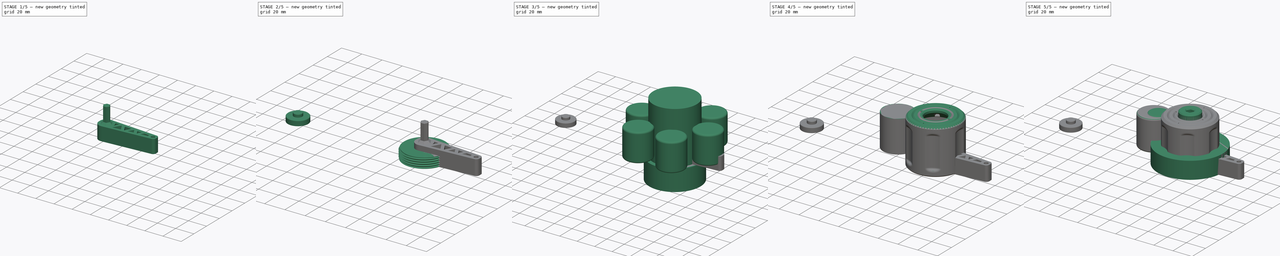
[diagram: build sequence overview — one tinted view per stage of 5, left to right]
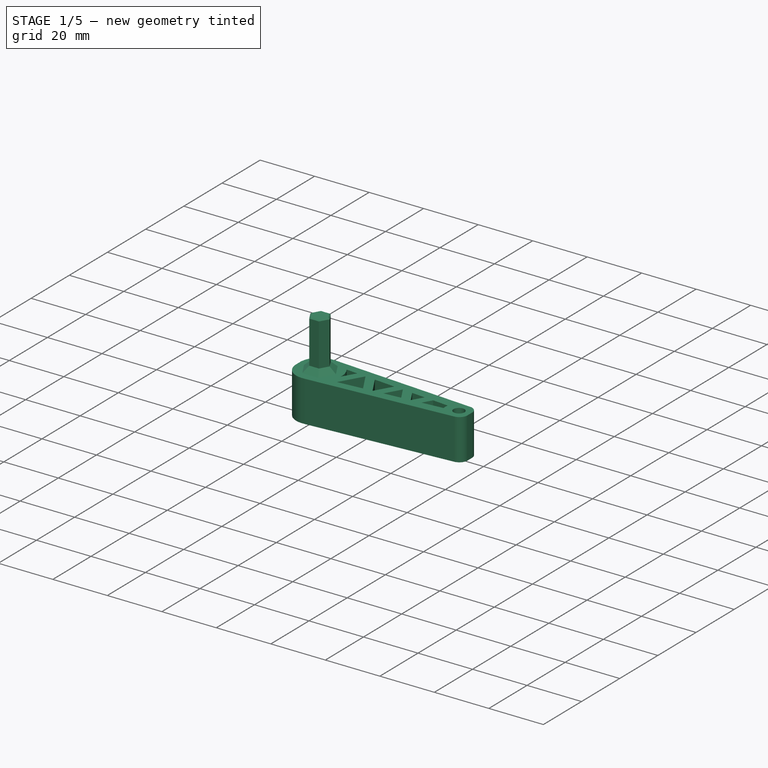
[diagram: stage 1 of 5 — iso view after this stage's code; geometry added in this stage tinted green]
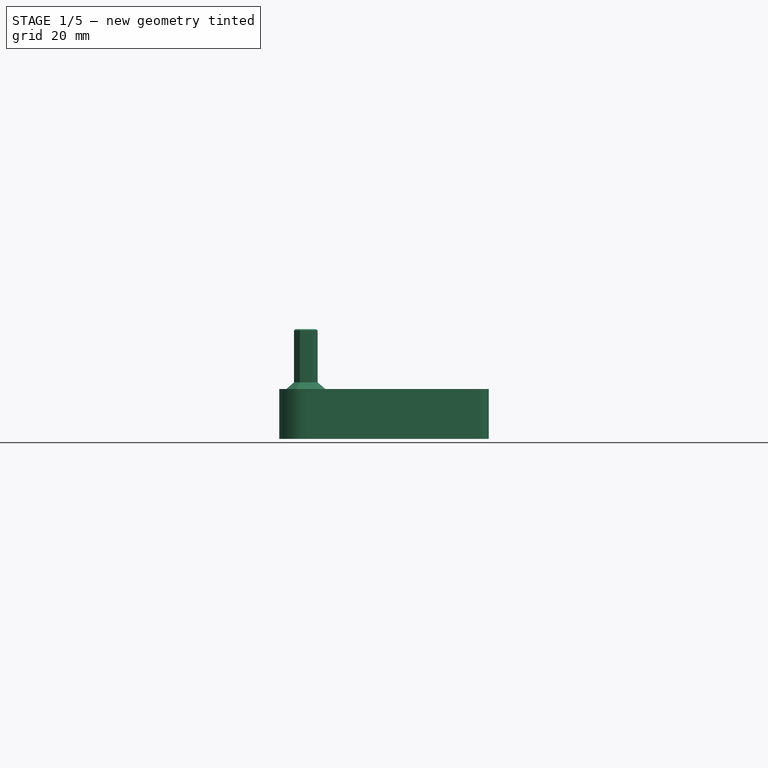
[diagram: stage 1 of 5 — front view after this stage's code; geometry added in this stage tinted green]
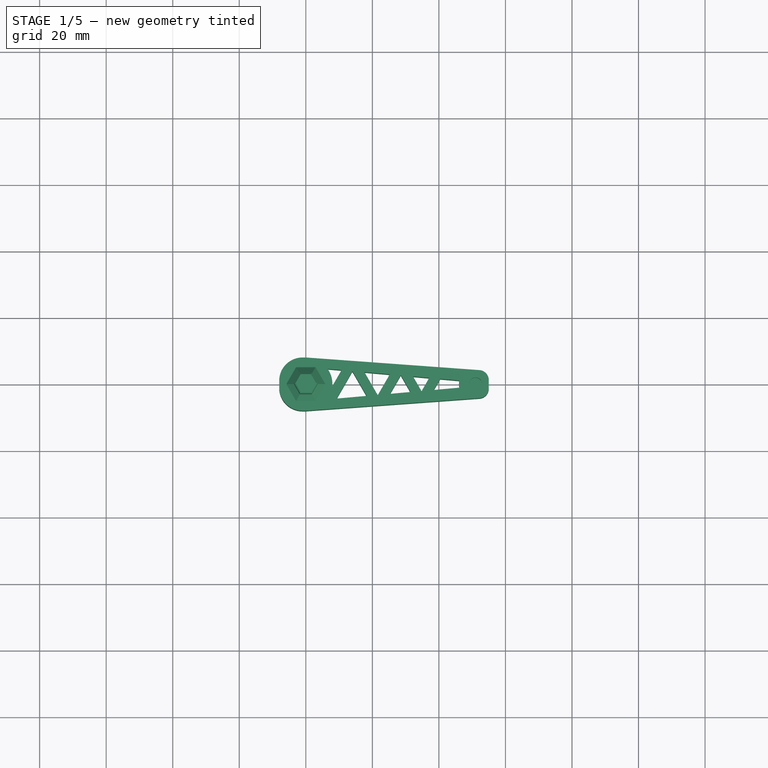
[diagram: stage 1 of 5 — top view after this stage's code; geometry added in this stage tinted green]
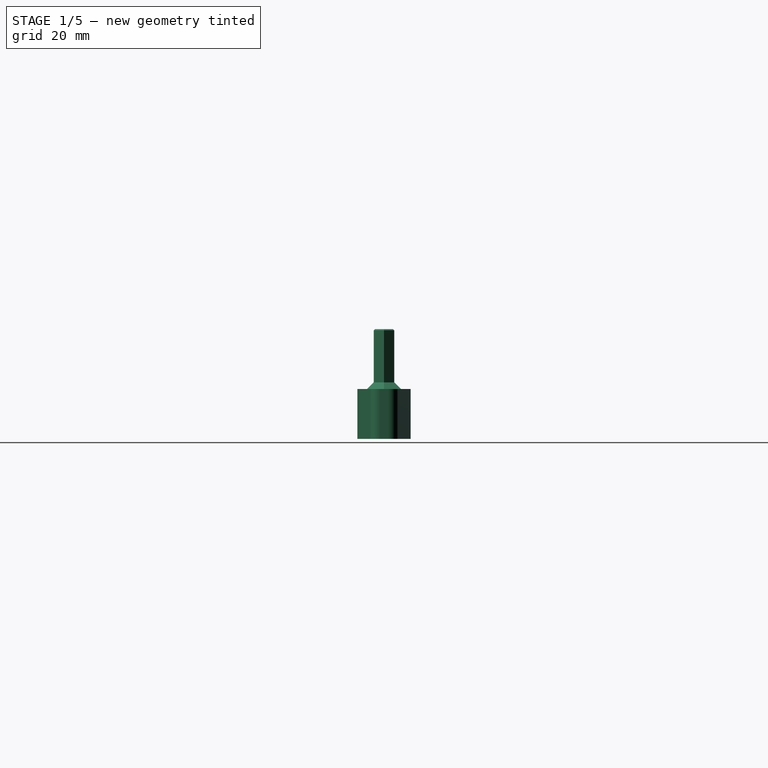
[diagram: stage 1 of 5 — right view after this stage's code; geometry added in this stage tinted green]
FCSTD DOCUMENT  (FreeCAD 0.18R16146 (Git))
Label: torque-wrench
License: All rights reserved
LicenseURL: http://en.wikipedia.org/wiki/All_rights_reserved
objects: Part::Feature×48, Part::Cylinder×39, Part::Cut×36, Part::Chamfer×23, Part::Box×13, Part::MultiFuse×11, Part::Fillet×5, Sketcher::SketchObject×4, PartDesign::Body×4, Part::Helix×3, PartDesign::AdditivePipe×2, Part::MultiCommon×2, PartDesign::Pad×1
note: 194 computed .brp shape members not serialized (recipe doc carries the construction recipe); baked Part::Feature solids carry a one-line shape summary decoded from their .brp

FEATURE [Part::Cylinder] Cylinder022001023
  Angle = 360
  AttacherType = Attacher::AttachEngine3D
  Height = 10
  Placement = pos=(51.02,0,0) rot=(0,0,1;0rad)
  Radius = 2
FEATURE [Part::Feature] Body002003002003002002001  label="Body002003002003002003"
  shape: bbox 7.1 x 6.149 x 50 mm, 8 faces (baked)
FEATURE [Part::Box] Box002002001002001005003  label="Cube016"
  AttacherType = Attacher::AttachEngine3D
  Height = 10
  Length = 63
  Placement = pos=(-8,-8,0) rot=(0,0,1;0rad)
  Width = 16
FEATURE [Part::Fillet] Fillet001008
  Base = -> Box002002001002001005003
  Edges = 2 edges r=7: [Edge1,Edge3]
FEATURE [Part::Chamfer] Chamfer025003
  Base = -> Fillet001008
  Edges = 1 edges: [Edge18 r1=55 r2=4]
FEATURE [Part::Chamfer] Chamfer025004
  Base = -> Chamfer025003
  Edges = 1 edges: [Edge15 r1=4 r2=55]
FEATURE [Part::Fillet] Fillet001009
  Base = -> Chamfer025004
  Edges = 2 edges r=3: [Edge9,Edge10]
FEATURE [Part::Cylinder] Cylinder022001024
  Angle = 360
  AttacherType = Attacher::AttachEngine3D
  Height = 19
  Radius = 8
FEATURE [Part::Box] Box002002001002001005004  label="Cube017"
  AttacherType = Attacher::AttachEngine3D
  Height = 12
  Length = 47
  Placement = pos=(0,-5,0) rot=(0,0,1;0rad)
  Width = 10
FEATURE [Part::Chamfer] Chamfer025005
  Base = -> Box002002001002001005004
  Edges = 1 edges: [Edge7 r1=4 r2=45]
FEATURE [Part::Chamfer] Chamfer025006
  Base = -> Chamfer025005
  Edges = 1 edges: [Edge3 r1=4 r2=45]
FEATURE [Part::Cut] Cut021013056003
  Base = -> Chamfer025006
  Tool = -> Cylinder022001024
FEATURE [Part::Cylinder] Cylinder022001025
  Angle = 360
  AttacherType = Attacher::AttachEngine3D
  Height = 13
  Placement = pos=(51.02,0,0) rot=(0,0,1;0rad)
  Radius = 5
FEATURE [Part::Cut] Cut021013056004
  Base = -> Cut021013056003
  Tool = -> Cylinder022001025
FEATURE [Part::Cut] Cut021013056005
  Base = -> Fillet001009
  Tool = -> Cut021013056004
FEATURE [Part::Box] Box002002001002001005005  label="Cube018"
  AttacherType = Attacher::AttachEngine3D
  Height = 15
  Length = 3
  Placement = pos=(5.63397,-4.63397,0) rot=(0,0,1;5.75959rad)
  Width = 13
FEATURE [Part::Feature] Cut021013056006001  label="Cut021013056007"
  Placement = pos=(0,0,5) rot=(0,0,1;0rad)
  shape: bbox 63 x 16 x 10 mm, 17 faces (baked)
FEATURE [Part::Box] Box002002001002001005006  label="Cube019"
  AttacherType = Attacher::AttachEngine3D
  Height = 15
  Length = 3
  Placement = pos=(19.0263,-4.83013,0) rot=(0,0,1;0.523599rad)
  Width = 11
FEATURE [Part::Box] Box002002001002001005007  label="Cube020"
  AttacherType = Attacher::AttachEngine3D
  Height = 15
  Length = 3
  Placement = pos=(21.3253,-3.84808,0) rot=(0,0,1;5.75959rad)
  Width = 11
FEATURE [Part::Box] Box002002001002001005008  label="Cube021"
  AttacherType = Attacher::AttachEngine3D
  Height = 15
  Length = 3
  Placement = pos=(32.4186,-4.02628,0) rot=(0,0,1;0.523599rad)
  Width = 8
FEATURE [Part::Box] Box002002001002001005009  label="Cube022"
  AttacherType = Attacher::AttachEngine3D
  Height = 15
  Length = 3
  Placement = pos=(33.9284,-3.61891,0) rot=(0,0,-1;0.523599rad)
  Width = 9
FEATURE [Part::Cylinder] Cylinder022001026
  Angle = 360
  AttacherType = Attacher::AttachEngine3D
  Height = 22
  Placement = pos=(0,0,33) rot=(0,0,1;0rad)
  Radius = 7
FEATURE [Part::Cut] Cut021013056006002
  Base = -> Body002003002003002002001
  Tool = -> Cylinder022001026
FEATURE [Part::Chamfer] Chamfer025007
  Base = -> Cut021013056006002
  Edges = 6 edges r=0.4: [Edge3,Edge11,Edge12,Edge13,Edge14,Edge15]
FEATURE [Part::Cylinder] Cylinder022001027
  Angle = 360
  AttacherType = Attacher::AttachEngine3D
  Height = 41
  Radius = 1.6
FEATURE [Part::Feature] Chamfer025008001  label="calibration-arm-std"
  shape: bbox 63 x 16 x 33 mm, 54 faces (baked)
FEATURE [Part::Cylinder] Cylinder022001028
  Angle = 360
  AttacherType = Attacher::AttachEngine3D
  Height = 3
  Radius = 3
FEATURE [Part::MultiFuse] Fusion006013
  Shapes = -> [Cylinder022001028,Cylinder022001027]
FEATURE [Part::Feature] Chamfer025008002  label="calibration-arm001"
  shape: bbox 63 x 16 x 33 mm, 54 faces (baked)
FEATURE [Part::Cut] Cut021013056006003  label="calibration-arm-hd"
  Base = -> Chamfer025008002
  Tool = -> Fusion006013
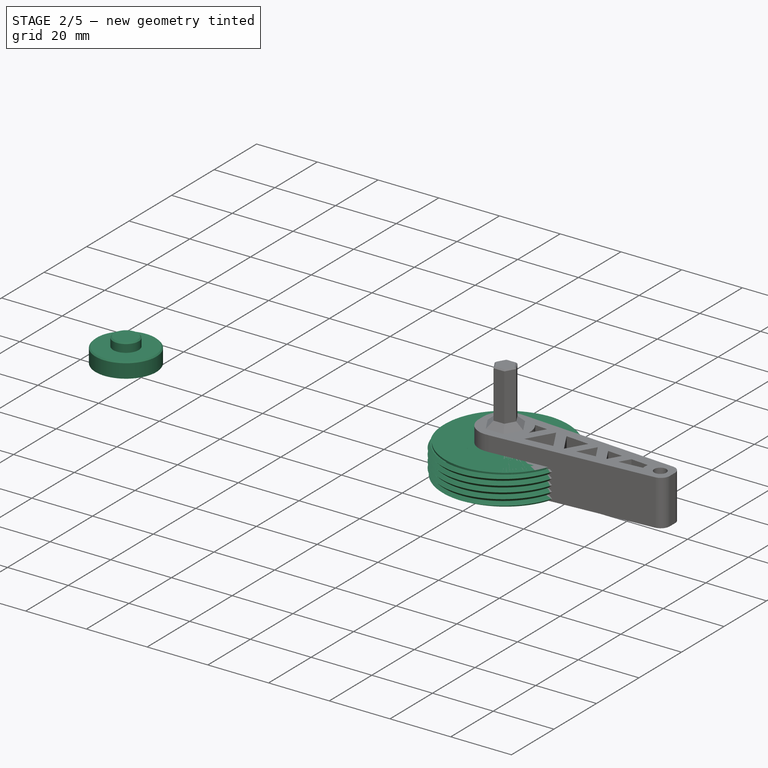
[diagram: stage 2 of 5 — iso view after this stage's code; geometry added in this stage tinted green]
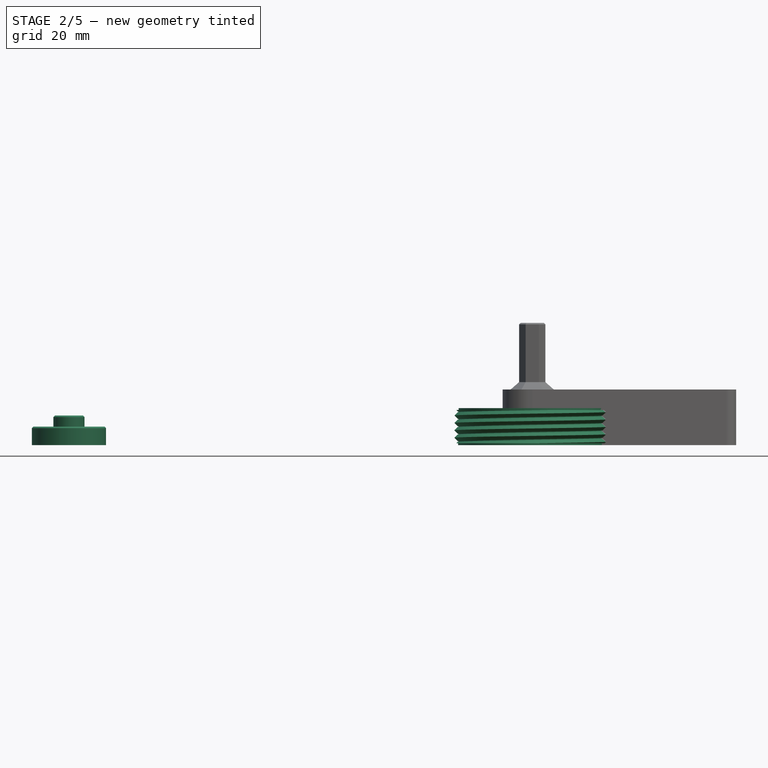
[diagram: stage 2 of 5 — front view after this stage's code; geometry added in this stage tinted green]
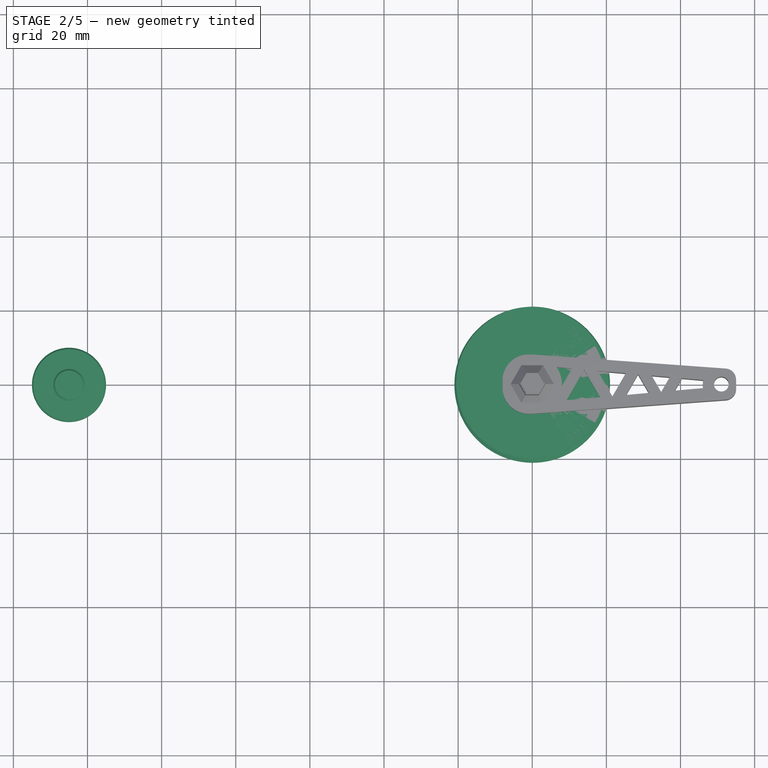
[diagram: stage 2 of 5 — top view after this stage's code; geometry added in this stage tinted green]
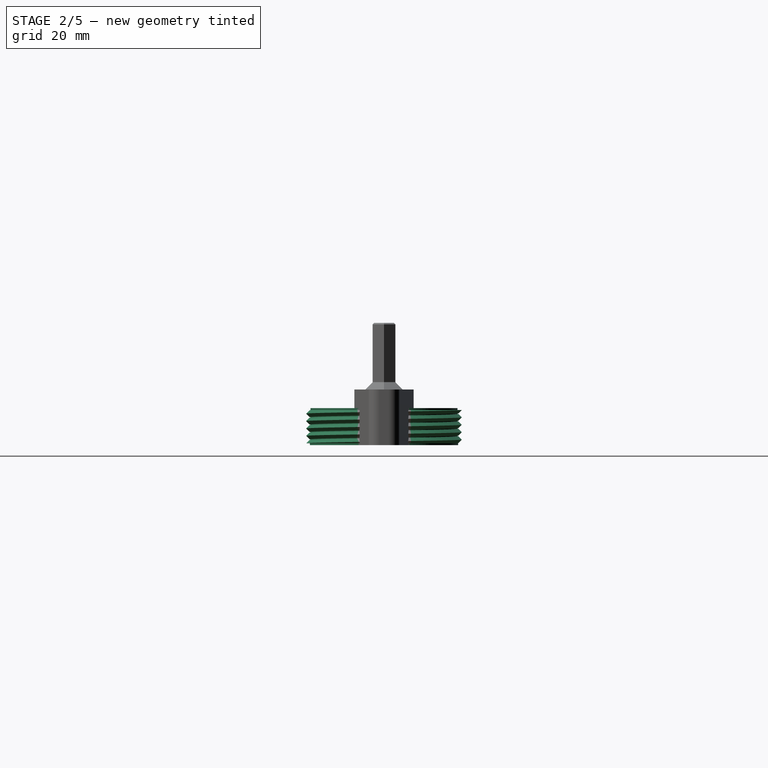
[diagram: stage 2 of 5 — right view after this stage's code; geometry added in this stage tinted green]
FEATURE [Part::Cylinder] Cylinder018  label="spring-slot"
  Angle = 360
  AttacherType = Attacher::AttachEngine3D
  Height = 20
  Placement = pos=(0,0,7) rot=(0,0,1;0rad)
  Radius = 4.3
FEATURE [Part::Cylinder] Cylinder020  label="Cylinder018"
  Angle = 360
  AttacherType = Attacher::AttachEngine3D
  Height = 9
  Placement = pos=(0,0,0.5) rot=(0,0,1;0rad)
  Radius = 28
FEATURE [Part::Cylinder] Cylinder021  label="Cylinder019"
  Angle = 360
  AttacherType = Attacher::AttachEngine3D
  Height = 10
  Radius = 19.85
FEATURE [PartDesign::Body] Body002003002003
  Group = -> [Sketch003,AdditivePipe001]
  Origin = -> Origin003
  Tip = -> AdditivePipe001
FEATURE [Part::Feature] Body002003002003001  label="inner-thread"
  shape: bbox 42.72 x 43.44 x 21.8 mm, 52 faces (baked)
FEATURE [Part::MultiCommon] Common
  Shapes = -> [Body002003002003001,Cylinder020]
FEATURE [Part::MultiFuse] Fusion
  Shapes = -> [Cylinder021,Common]
FEATURE [Part::Cut] Cut
  Base = -> Fusion
  Tool = -> Cylinder018
FEATURE [Part::Cylinder] Cylinder022001011
  Angle = 360
  AttacherType = Attacher::AttachEngine3D
  Height = 1
  Radius = 17
FEATURE [Part::Cylinder] Cylinder022001012
  Angle = 360
  AttacherType = Attacher::AttachEngine3D
  Height = 1
  Radius = 20
FEATURE [Part::Cut] Cut021013044
  Base = -> Cylinder022001012
  Tool = -> Cylinder022001011
FEATURE [Part::Cylinder] Cylinder022001013
  Angle = 360
  AttacherType = Attacher::AttachEngine3D
  Height = 3
  Placement = pos=(0,0,7) rot=(0,0,1;0rad)
  Radius = 17
FEATURE [Part::Box] Box  label="Cube"
  AttacherType = Attacher::AttachEngine3D
  Height = 3
  Length = 12
  Placement = pos=(-6,-18,7) rot=(0,0,1;0rad)
  Width = 36
FEATURE [Part::Cut] Cut021013046
  Base = -> Cylinder022001013
  Tool = -> Box
FEATURE [Part::Box] Box002002001002001003  label="Cube011"
  AttacherType = Attacher::AttachEngine3D
  Height = 10
  Length = 36
  Placement = pos=(-18,6,0) rot=(0,0,1;0rad)
  Width = 2
FEATURE [Part::Box] Box002002001002001004  label="Cube012"
  AttacherType = Attacher::AttachEngine3D
  Height = 10
  Length = 36
  Placement = pos=(-18,-8,0) rot=(0,0,1;0rad)
  Width = 2
FEATURE [Part::Cut] Cut021013047
  Base = -> Cut021013046
  Tool = -> Box002002001002001004
FEATURE [Part::Cut] Cut021013048
  Base = -> Cut021013047
  Tool = -> Box002002001002001003
FEATURE [Part::Feature] Chamfer025001  label="cap-r002"
  Placement = pos=(87,0,10) rot=(0,1,0;3.14159rad)
  shape: bbox 42.72 x 43.44 x 11.22 mm, 93 faces (baked)
FEATURE [Part::Feature] Cut021013056001  label="housing-r002"
  Placement = pos=(-53,0,46) rot=(0,1,0;3.14159rad)
  shape: bbox 51.67 x 50 x 46.11 mm, 166 faces (baked)
FEATURE [Part::Feature] Cut021013036001  label="bottom-rotor-r002"
  Placement = pos=(0,0,-24) rot=(0,0,1;0rad)
  shape: bbox 40 x 34.86 x 8 mm, 50 faces (baked)
FEATURE [Part::Feature] Chamfer014001  label="top-rotor-r002"
  Placement = pos=(43,0,50) rot=(0,1,0;3.14159rad)
  shape: bbox 34.5 x 34.5 x 22.59 mm, 57 faces (baked)
FEATURE [Part::Cylinder] Cylinder022001019
  Angle = 360
  AttacherType = Attacher::AttachEngine3D
  Height = 5
  Placement = pos=(-125,0,0) rot=(0,0,1;0rad)
  Radius = 10
FEATURE [Part::Cylinder] Cylinder022001020
  Angle = 360
  AttacherType = Attacher::AttachEngine3D
  Height = 3
  Placement = pos=(-125,0,5) rot=(0,0,1;0rad)
  Radius = 4.2
FEATURE [Part::Cylinder] Cylinder022001021
  Angle = 360
  AttacherType = Attacher::AttachEngine3D
  Height = 3
  Placement = pos=(-125,0,0) rot=(0,0,1;0rad)
  Radius = 4.3
FEATURE [Part::Cut] Cut021013056002
  Base = -> Cylinder022001019
  Tool = -> Cylinder022001021
FEATURE [Part::MultiFuse] Fusion006010
  Shapes = -> [Cut021013056002,Cylinder022001020]
FEATURE [Part::Chamfer] Chamfer025002  label="spacer-r1"
  Base = -> Fusion006010
  Edges = 2 edges r=0.4: [Edge1,Edge6]
FEATURE [Part::Cylinder] Cylinder022001022
  Angle = 360
  AttacherType = Attacher::AttachEngine3D
  Height = 10
  Radius = 2
FEATURE [Part::Cut] Cut021013056006
  Base = -> Cut021013056005
  Tool = -> Cylinder022001023
FEATURE [Part::MultiFuse] Fusion006011
  Shapes = -> [Box002002001002001005009,Box002002001002001005008,Box002002001002001005007,Box002002001002001005006,Cut021013056006001,Box002002001002001005005,Cut021013056006]
FEATURE [Part::MultiFuse] Fusion006012
  Shapes = -> [Chamfer025007,Fusion006011]
FEATURE [Part::Chamfer] Chamfer025008  label="calibration-arm"
  Base = -> Fusion006012
  Edges = 6 edges r=2: [Edge290,Edge291,Edge292,Edge293,Edge294,Edge295]
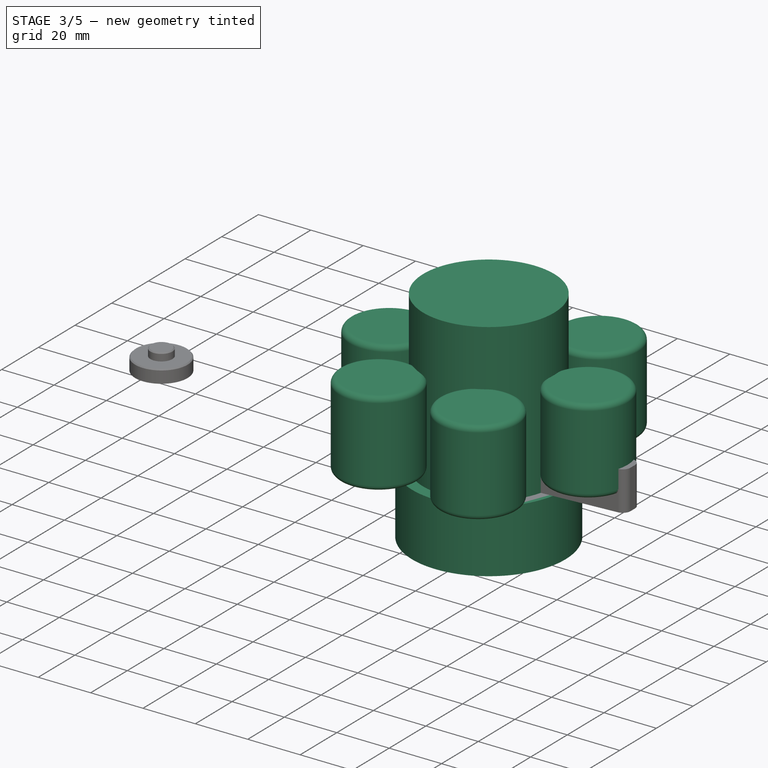
[diagram: stage 3 of 5 — iso view after this stage's code; geometry added in this stage tinted green]
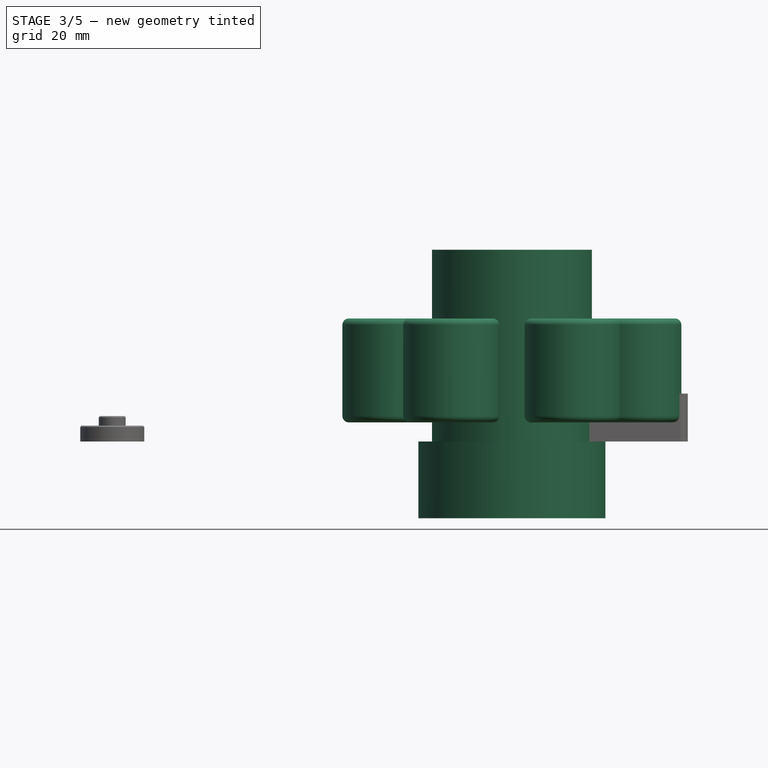
[diagram: stage 3 of 5 — front view after this stage's code; geometry added in this stage tinted green]
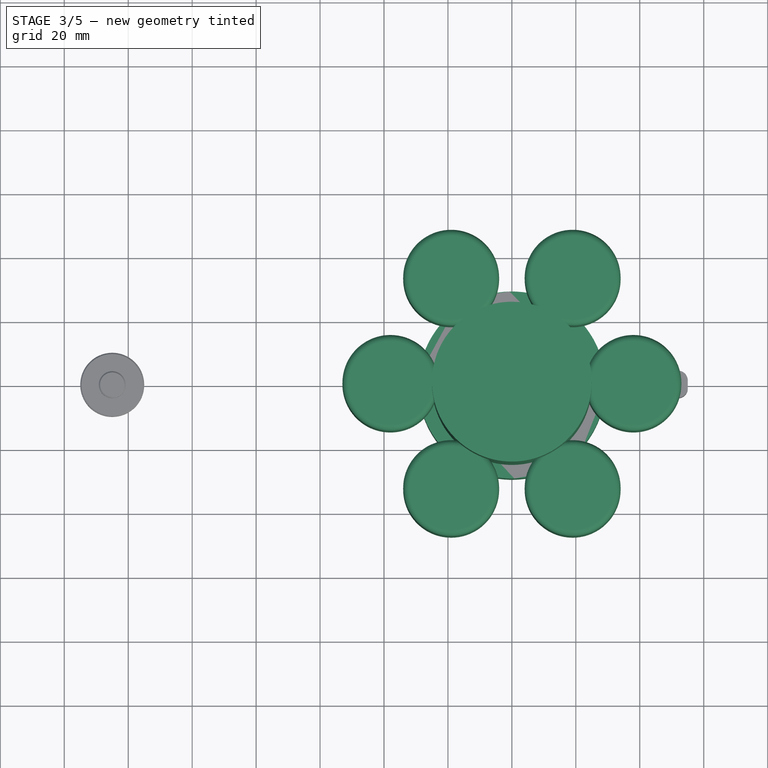
[diagram: stage 3 of 5 — top view after this stage's code; geometry added in this stage tinted green]
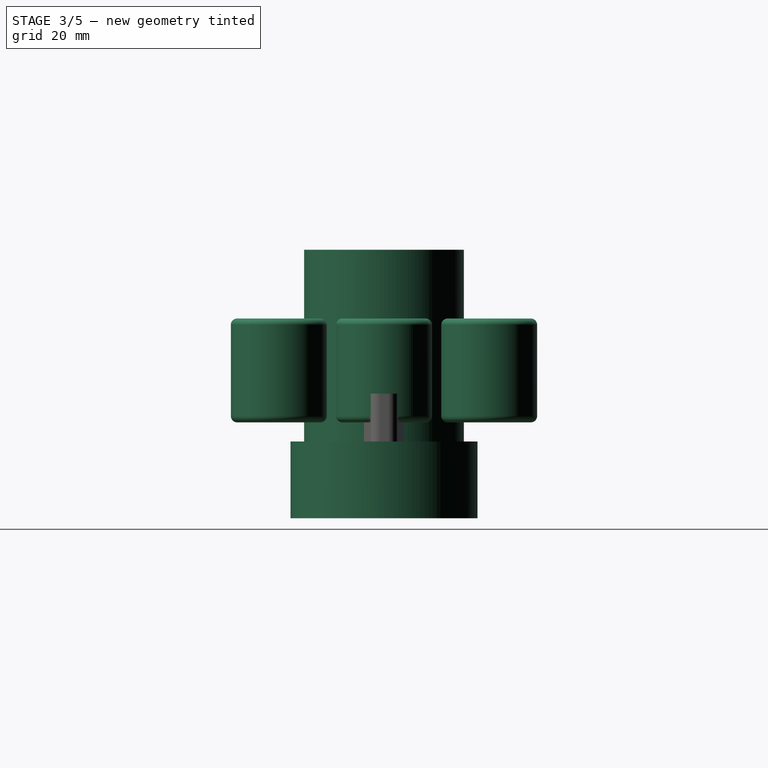
[diagram: stage 3 of 5 — right view after this stage's code; geometry added in this stage tinted green]
FEATURE [Part::Cylinder] Cylinder007
  Angle = 360
  AttacherType = Attacher::AttachEngine3D
  Height = 60
  Radius = 25
FEATURE [Part::Cylinder] Cylinder009
  Angle = 360
  AttacherType = Attacher::AttachEngine3D
  Height = 71
  Radius = 17.5
FEATURE [Part::Chamfer] Chamfer003
  Base = -> Cylinder009
  Edges = 1 edges r=7: [Edge1]
  Placement = pos=(0,0,-14) rot=(0,0,1;0rad)
FEATURE [Part::Cut] Cut021013021
  Base = -> Cylinder007
  Tool = -> Chamfer003
FEATURE [Part::Cylinder] Cylinder019  label="Cylinder017"
  Angle = 360
  AttacherType = Attacher::AttachEngine3D
  Height = 5
  Radius = 15
FEATURE [Part::Box] Box002002001002001002  label="Cube010"
  AttacherType = Attacher::AttachEngine3D
  Height = 5
  Length = 34
  Placement = pos=(-17,-4,17) rot=(0,0,1;0rad)
  Width = 8
FEATURE [Part::Chamfer] Chamfer007
  Base = -> Box002002001002001002
  Edges = 2 edges r=1: [Edge9,Edge11]
  Placement = pos=(0,0,-17) rot=(0,0,1;0rad)
FEATURE [Part::Cut] Cut021013034
  Base = -> Cut
  Tool = -> Cylinder019
FEATURE [Part::Chamfer] Chamfer012
  Base = -> Cut021013034
  Edges = 1 edges r=1: [Edge67]
FEATURE [Part::Feature] Cylinder022001001  label="PTFE-slot-001"
  shape: bbox 7.283 x 4.3 x 7.283 mm, 3 faces (baked)
FEATURE [Part::Feature] Cylinder022001002  label="PTFE-slot-002"
  Placement = pos=(0,0,0) rot=(0,0,-1;1.0472rad)
  shape: bbox 6.144 x 7.074 x 7.283 mm, 3 faces (baked)
FEATURE [Part::Feature] Cylinder022001003  label="PTFE-slot-003"
  Placement = pos=(0,0,0) rot=(0,0,1;4.18879rad)
  shape: bbox 6.144 x 7.074 x 7.283 mm, 3 faces (baked)
FEATURE [Part::Feature] Cylinder022001004  label="PTFE-slot-004"
  Placement = pos=(0,0,0) rot=(0,0,1;3.14159rad)
  shape: bbox 7.283 x 4.3 x 7.283 mm, 3 faces (baked)
FEATURE [Part::Feature] Cylinder022001005  label="PTFE-slot-005"
  Placement = pos=(0,0,0) rot=(0,0,1;2.0944rad)
  shape: bbox 6.144 x 7.074 x 7.283 mm, 3 faces (baked)
FEATURE [Part::Feature] Cylinder022001006  label="PTFE-slot-006"
  Placement = pos=(0,0,0) rot=(0,0,1;1.0472rad)
  shape: bbox 6.144 x 7.074 x 7.283 mm, 3 faces (baked)
FEATURE [Part::MultiFuse] Fusion006006  label="PTFE"
  Shapes = -> [Cylinder022001006,Cylinder022001004,Cylinder022001002,Cylinder022001001,Cylinder022001005,Cylinder022001003]
FEATURE [Part::Cylinder] Cylinder022001008
  Angle = 360
  AttacherType = Attacher::AttachEngine3D
  Height = 24
  Placement = pos=(0,0,-24) rot=(0,0,1;0rad)
  Radius = 29.25
FEATURE [Part::Cylinder] Cylinder022001009
  Angle = 360
  AttacherType = Attacher::AttachEngine3D
  Height = 1
  Radius = 21.5
FEATURE [Part::MultiFuse] Fusion006008
  Shapes = -> [Chamfer012,Chamfer007]
FEATURE [Part::Cut] Cut021013045
  Base = -> Fusion006008
  Tool = -> Cut021013044
FEATURE [Part::Chamfer] Chamfer018
  Base = -> Cut021013045
  Edges = 1 edges r=0.4: [Edge15]
FEATURE [Part::Feature] Fillet001001  label="grip-cut-001"
  shape: bbox 32.47 x 32.47 x 32.5 mm, 5 faces (baked)
FEATURE [Part::Feature] Fillet001002  label="grip-cut-002"
  Placement = pos=(0,0,0) rot=(0,0,-1;1.0472rad)
  shape: bbox 31.37 x 31.37 x 32.5 mm, 5 faces (baked)
FEATURE [Part::Feature] Fillet001003  label="grip-cut-003"
  Placement = pos=(0,0,0) rot=(0,0,1;4.18879rad)
  shape: bbox 31.37 x 31.37 x 32.5 mm, 5 faces (baked)
FEATURE [Part::Feature] Fillet001004  label="grip-cut-004"
  Placement = pos=(0,0,0) rot=(0,0,1;3.14159rad)
  shape: bbox 32.47 x 32.47 x 32.5 mm, 5 faces (baked)
FEATURE [Part::Feature] Fillet001005  label="grip-cut-005"
  Placement = pos=(0,0,0) rot=(0,0,1;2.0944rad)
  shape: bbox 31.37 x 31.37 x 32.5 mm, 5 faces (baked)
FEATURE [Part::Feature] Fillet001006  label="grip-cut-006"
  Placement = pos=(0,0,0) rot=(0,0,1;1.0472rad)
  shape: bbox 31.37 x 31.37 x 32.5 mm, 5 faces (baked)
FEATURE [Part::MultiFuse] Fusion006009  label="grip-slot"
  Shapes = -> [Fillet001006,Fillet001005,Fillet001004,Fillet001003,Fillet001002,Fillet001001]
FEATURE [Part::Cylinder] Cylinder022001015
  Angle = 360
  AttacherType = Attacher::AttachEngine3D
  Height = 2
  Placement = pos=(0,0,44.5) rot=(0,0,1;0rad)
  Radius = 13
FEATURE [Part::Cylinder] Cylinder022001016
  Angle = 360
  AttacherType = Attacher::AttachEngine3D
  Height = 2
  Placement = pos=(0,0,44.5) rot=(0,0,1;0rad)
  Radius = 15
FEATURE [Part::Box] Box002002001002001005  label="Cube013"
  AttacherType = Attacher::AttachEngine3D
  Height = 10
  Length = 45
  Placement = pos=(-22.5,-1,44.5) rot=(0,0,1;0rad)
  Width = 2
FEATURE [Part::Cut] Cut021013052
  Base = -> Cylinder022001016
  Tool = -> Cylinder022001015
FEATURE [Part::Chamfer] Chamfer024
  Base = -> Cut021013052
  Edges = 2 edges r=0.99: [Edge3,Edge5]
FEATURE [Part::Cut] Cut021013053
  Base = -> Chamfer024
  Tool = -> Box002002001002001005
FEATURE [Part::Box] Box002002001002001005002  label="Cube015"
  AttacherType = Attacher::AttachEngine3D
  Height = 1
  Length = 10
  Placement = pos=(-5,-2,0) rot=(0,0,1;0rad)
  Width = 4
FEATURE [Part::Cut] Cut021013057
  Base = -> Chamfer018
  Tool = -> Cut021013048
FEATURE [Part::Cut] Cut021013058
  Base = -> Cut021013057
  Tool = -> Box002002001002001005002
FEATURE [Part::Chamfer] Chamfer025  label="cap-r1"
  Base = -> Cut021013058
  Edges = 4 edges r=0.4: [Edge27,Edge28,Edge29,Edge30]
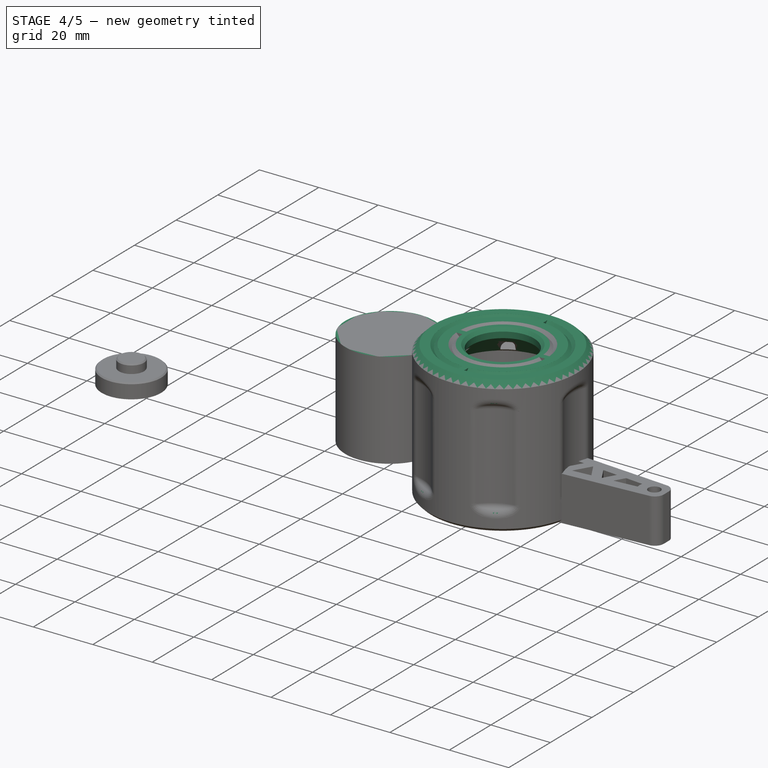
[diagram: stage 4 of 5 — iso view after this stage's code; geometry added in this stage tinted green]
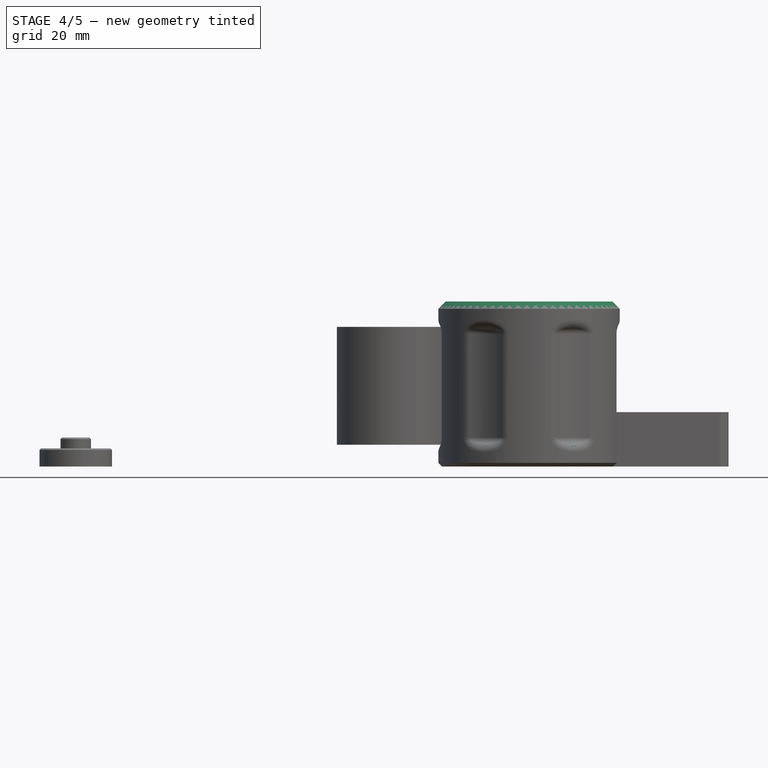
[diagram: stage 4 of 5 — front view after this stage's code; geometry added in this stage tinted green]
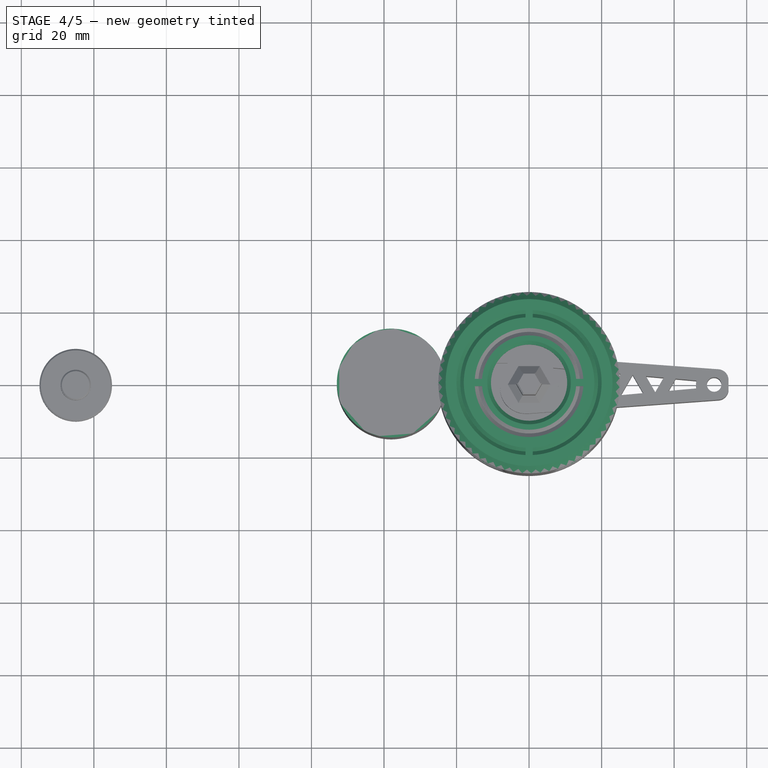
[diagram: stage 4 of 5 — top view after this stage's code; geometry added in this stage tinted green]
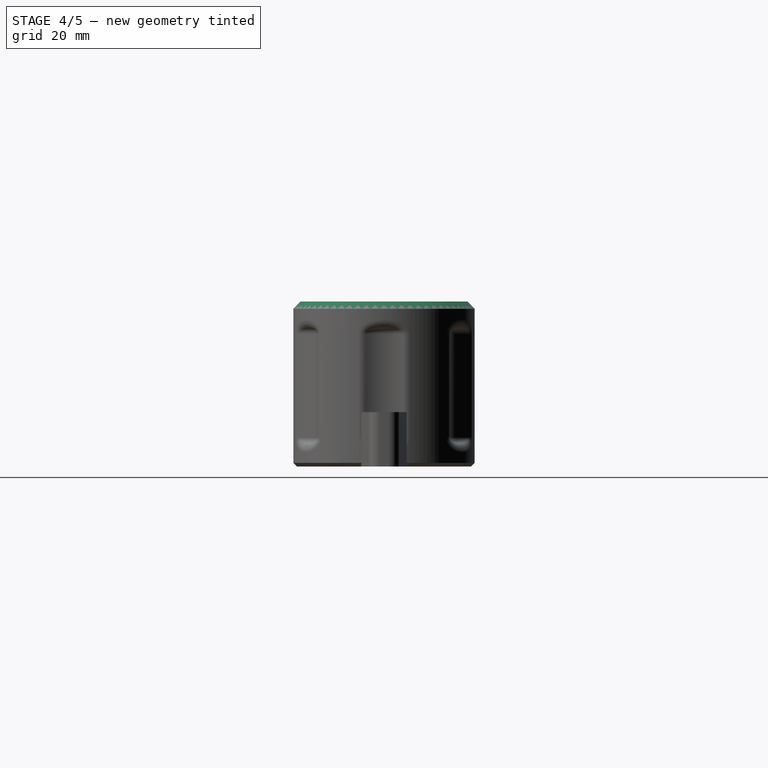
[diagram: stage 4 of 5 — right view after this stage's code; geometry added in this stage tinted green]
FEATURE [Part::Cylinder] Cylinder010
  Angle = 360
  AttacherType = Attacher::AttachEngine3D
  Height = 74
  Radius = 10.5
FEATURE [Part::Feature] Body001
  Placement = pos=(0,0,36) rot=(0,0,1;0rad)
  shape: bbox 40.5 x 35.32 x 20 mm, 8 faces (baked)
FEATURE [Part::Cylinder] Cylinder011
  Angle = 360
  AttacherType = Attacher::AttachEngine3D
  Height = 24
  Placement = pos=(0,0,-5) rot=(0,0,1;0rad)
  Radius = 20.25
FEATURE [Part::Cut] Cut021013022
  Base = -> Cut021013021
  Placement = pos=(0,0,-14.5) rot=(0,0,1;0rad)
  Tool = -> Cylinder010
FEATURE [Part::Cylinder] Cylinder016  label="Cylinder015"
  Angle = 360
  AttacherType = Attacher::AttachEngine3D
  Height = 14
  Placement = pos=(0,0,44) rot=(0,0,1;0rad)
  Radius = 29
FEATURE [Part::Cut] Cut021013023
  Base = -> Body001
  Placement = pos=(0,0,-17) rot=(0,0,1;0rad)
  Tool = -> Cylinder016
FEATURE [Part::Cut] Cut021013037
  Base = -> Cut021013022
  Tool = -> Fusion006006
FEATURE [Part::Cut] Cut021013038
  Base = -> Cut021013037
  Tool = -> Cut021013023
FEATURE [Part::Cut] Cut021013039
  Base = -> Cut021013038
  Tool = -> Cylinder011
FEATURE [Part::Cut] Cut021013040
  Base = -> Cut021013039
  Tool = -> Cylinder022001008
FEATURE [Part::Cylinder] Cylinder
  Angle = 360
  AttacherType = Attacher::AttachEngine3D
  Height = 17
  Radius = 30
FEATURE [Part::MultiCommon] Common001
  Placement = pos=(0,0,1) rot=(0,0,1;0rad)
  Shapes = -> [Cylinder,Body002003002002]
FEATURE [Part::Cut] Cut021013041
  Base = -> Cut021013040
  Tool = -> Cylinder022001009
FEATURE [Part::Cut] Cut021013042
  Base = -> Cut021013041
  Tool = -> Common001
FEATURE [Part::Chamfer] Chamfer019
  Base = -> Cut021013042
  Edges = 1 edges r=0.4: [Edge4]
FEATURE [Part::Chamfer] Chamfer020
  Base = -> Chamfer019
  Edges = 1 edges r=1: [Edge2]
FEATURE [Part::Chamfer] Chamfer021
  Base = -> Chamfer020
  Edges = 1 edges r=1: [Edge11]
FEATURE [Part::Chamfer] Chamfer022
  Base = -> Chamfer021
  Edges = 1 edges r=2: [Edge2]
FEATURE [Part::Cylinder] Cylinder022001014
  Angle = 360
  AttacherType = Attacher::AttachEngine3D
  Height = 32.5
  Placement = pos=(-38,0,6) rot=(0,0,1;0rad)
  Radius = 15
FEATURE [Part::Cut] Cut021013050
  Base = -> Chamfer022
  Tool = -> Fusion006009
FEATURE [Part::Fillet] Fillet001007
  Base = -> Cut021013050
  Edges = 36 edges r=3: [Edge9,Edge10,Edge11,Edge13,Edge14,Edge15,Edge16,Edge17,Edge18,Edge19,Edge20,Edge21,Edge22,Edge23,Edge24,Edge25,Edge26,Edge27,Edge28,Edge29,Edge30,Edge31,Edge32,Edge33,Edge34,Edge35,Edge36,Edge37,Edge38,Edge39,Edge40,Edge41,Edge42,Edge43,Edge44,Edge45]
FEATURE [Part::Feature] Box002002001002001005001  label="Cube014"
  Placement = pos=(0,0,0) rot=(0,0,1;1.5708rad)
  shape: bbox 2 x 45 x 10 mm, 6 faces (baked)
FEATURE [Part::Cylinder] Cylinder022001017
  Angle = 360
  AttacherType = Attacher::AttachEngine3D
  Height = 2
  Placement = pos=(0,0,44.5) rot=(0,0,1;0rad)
  Radius = 18
FEATURE [Part::Cylinder] Cylinder022001018
  Angle = 360
  AttacherType = Attacher::AttachEngine3D
  Height = 2
  Placement = pos=(0,0,44.5) rot=(0,0,1;0rad)
  Radius = 20
FEATURE [Part::Cut] Cut021013051
  Base = -> Cylinder022001018
  Tool = -> Cylinder022001017
FEATURE [Part::Chamfer] Chamfer023
  Base = -> Cut021013051
  Edges = 2 edges r=0.99: [Edge3,Edge5]
FEATURE [Part::Cut] Cut021013054
  Base = -> Chamfer023
  Tool = -> Box002002001002001005001
FEATURE [Part::Cut] Cut021013055
  Base = -> Fillet001007
  Tool = -> Cut021013053
FEATURE [Part::Cut] Cut021013056  label="housing-r1"
  Base = -> Cut021013055
  Tool = -> Cut021013054
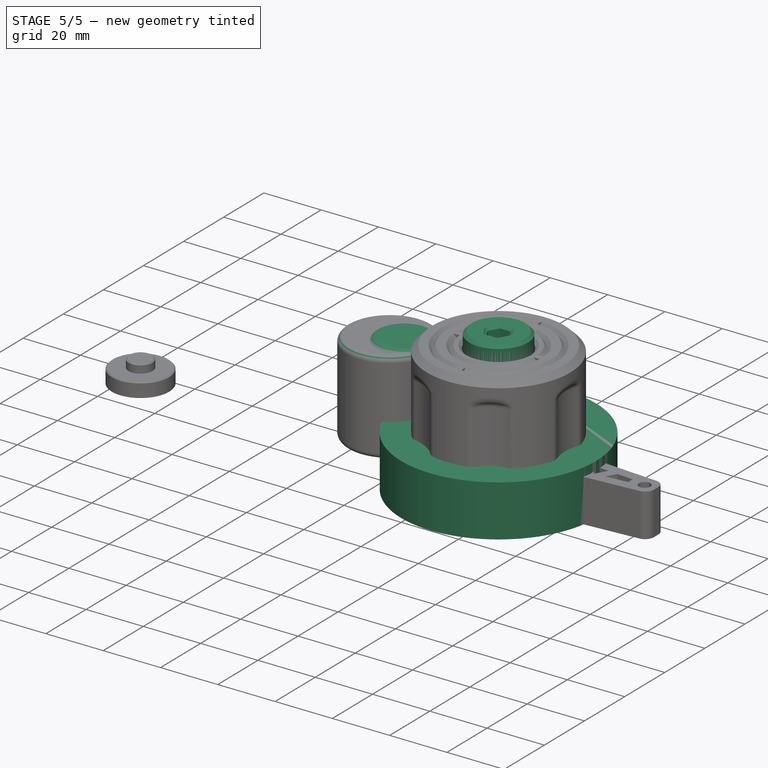
[diagram: stage 5 of 5 — iso view after this stage's code; geometry added in this stage tinted green]
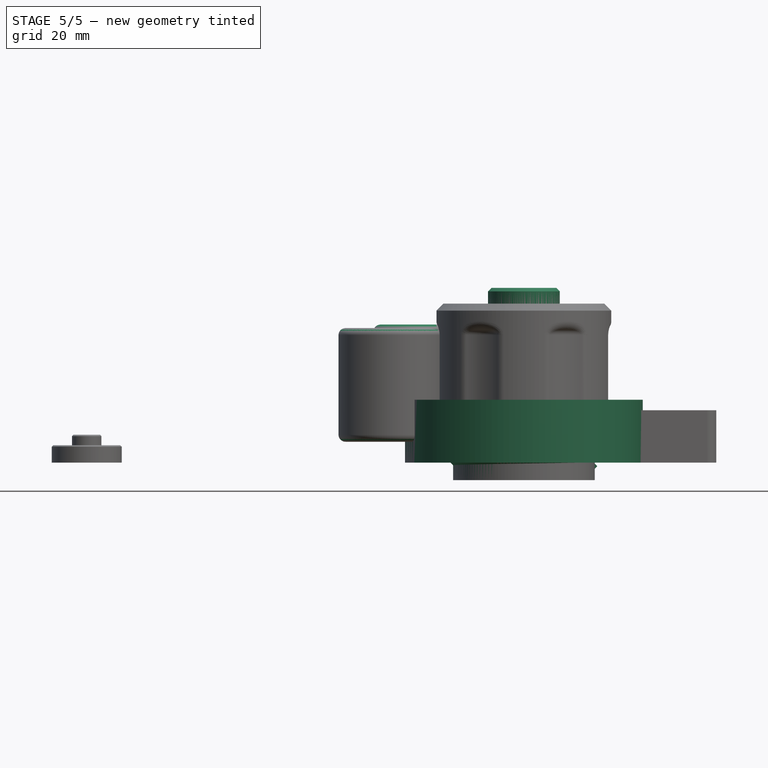
[diagram: stage 5 of 5 — front view after this stage's code; geometry added in this stage tinted green]
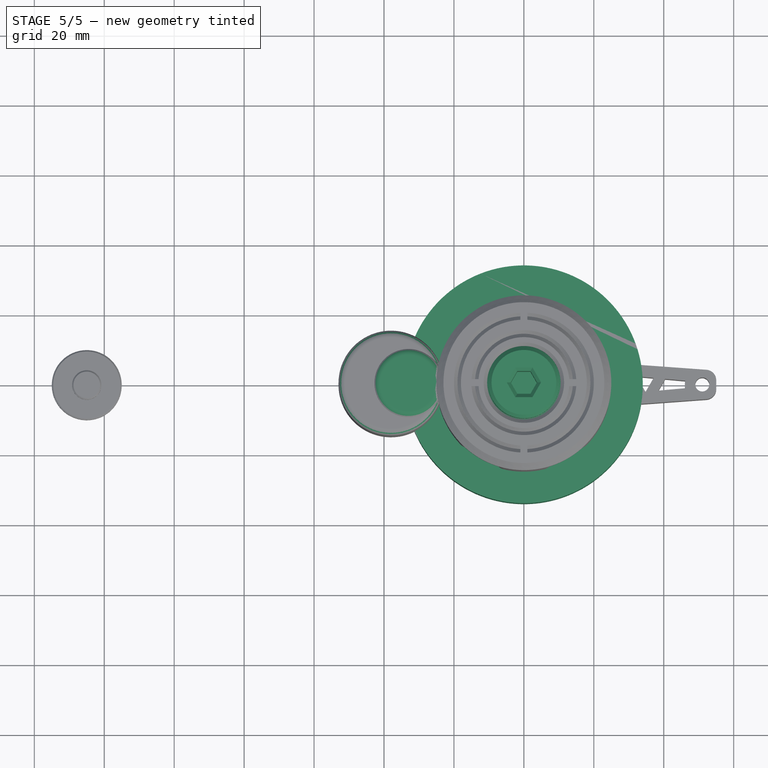
[diagram: stage 5 of 5 — top view after this stage's code; geometry added in this stage tinted green]
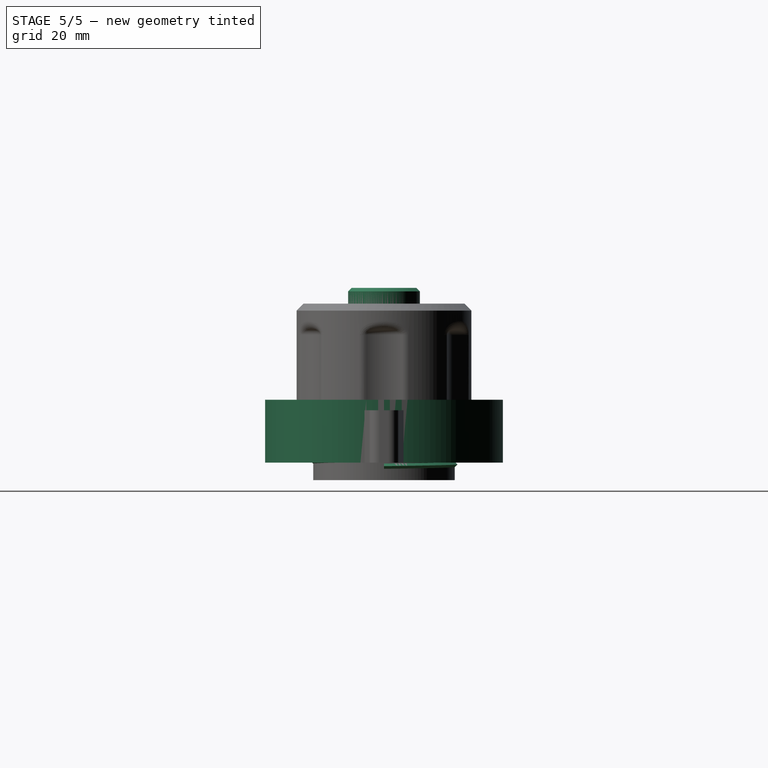
[diagram: stage 5 of 5 — right view after this stage's code; geometry added in this stage tinted green]
FEATURE [Part::Cylinder] Cylinder003
  Angle = 360
  AttacherType = Attacher::AttachEngine3D
  Height = 5
  Radius = 7.25
FEATURE [Part::Cylinder] Cylinder004
  Angle = 360
  AttacherType = Attacher::AttachEngine3D
  Height = 5.5
  Radius = 7.5
FEATURE [Part::Cylinder] Cylinder005
  Angle = 360
  AttacherType = Attacher::AttachEngine3D
  Height = 10
  Placement = pos=(0,0,21) rot=(0,0,1;0rad)
  Radius = 10.25
FEATURE [Part::Cylinder] Cylinder006
  Angle = 360
  AttacherType = Attacher::AttachEngine3D
  Height = 10
  Placement = pos=(0,0,3) rot=(0,0,1;0rad)
  Radius = 17.25
FEATURE [Part::Cylinder] Cylinder008  label="spring-slot001"
  Angle = 360
  AttacherType = Attacher::AttachEngine3D
  Height = 3
  Placement = pos=(0,0,-3) rot=(0,0,1;0rad)
  Radius = 4.3
FEATURE [Part::Feature] Pad001
  Placement = pos=(0,0,-3) rot=(0,0,1;0rad)
  shape: bbox 40 x 34.86 x 3 mm, 8 faces (baked)
FEATURE [Part::Chamfer] Chamfer002
  Base = -> Cylinder005
  Edges = 1 edges r=1: [Edge1]
  Placement = pos=(0,0,-8) rot=(0,0,1;0rad)
FEATURE [Part::Cylinder] Cylinder015  label="Cylinder014"
  Angle = 20
  AttacherType = Attacher::AttachEngine3D
  Height = 10
  Placement = pos=(0,0,0) rot=(0,0,1;1.39626rad)
  Radius = 17.25
FEATURE [Part::Feature] Box002002001002001001  label="Cube009"
  Placement = pos=(0,0,1.5) rot=(0,0,1;0rad)
  shape: bbox 25.98 x 25 x 26.57 mm, 6 faces (baked)
FEATURE [Part::Cut] Cut021013  label="30-angle-teeth-small"
  Base = -> Cylinder015
  Tool = -> Box002002001002001001
FEATURE [Part::Feature] Cut021013001  label="30-angle-teeth-small001"
  shape: bbox 5.991 x 17.25 x 2.59 mm, 5 faces (baked)
FEATURE [Part::Feature] Cut021013002  label="30-angle-teeth-small002"
  Placement = pos=(0,0,0) rot=(0,0,-1;0.349066rad)
  shape: bbox 8.625 x 16.99 x 2.59 mm, 5 faces (baked)
FEATURE [Part::Feature] Cut021013003  label="30-angle-teeth-small003"
  Placement = pos=(0,0,0) rot=(0,0,-1;0.698132rad)
  shape: bbox 13.21 x 14.94 x 2.59 mm, 5 faces (baked)
FEATURE [Part::Feature] Cut021013004  label="30-angle-teeth-small004"
  Placement = pos=(0,0,0) rot=(0,0,-1;1.0472rad)
  shape: bbox 16.21 x 11.09 x 2.59 mm, 5 faces (baked)
FEATURE [Part::Feature] Cut021013005  label="30-angle-teeth-small005"
  Placement = pos=(0,0,0) rot=(0,0,1;4.88692rad)
  shape: bbox 17.25 x 5.9 x 2.59 mm, 5 faces (baked)
FEATURE [Part::Feature] Cut021013006  label="30-angle-teeth-small006"
  Placement = pos=(0,0,0) rot=(0,0,-1;1.74533rad)
  shape: bbox 17.25 x 5.9 x 2.59 mm, 5 faces (baked)
FEATURE [Part::Feature] Cut021013007  label="30-angle-teeth-small007"
  Placement = pos=(0,0,0) rot=(0,0,1;4.18879rad)
  shape: bbox 16.21 x 11.09 x 2.59 mm, 5 faces (baked)
FEATURE [Part::Feature] Cut021013008  label="30-angle-teeth-small008"
  Placement = pos=(0,0,0) rot=(0,0,1;3.83972rad)
  shape: bbox 13.21 x 14.94 x 2.59 mm, 5 faces (baked)
FEATURE [Part::Feature] Cut021013009  label="30-angle-teeth-small009"
  Placement = pos=(0,0,0) rot=(0,0,1;3.49066rad)
  shape: bbox 8.625 x 16.99 x 2.59 mm, 5 faces (baked)
FEATURE [Part::Feature] Cut021013010  label="30-angle-teeth-small010"
  Placement = pos=(0,0,0) rot=(0,0,1;3.14159rad)
  shape: bbox 5.991 x 17.25 x 2.59 mm, 5 faces (baked)
FEATURE [Part::Feature] Cut021013011  label="30-angle-teeth-small011"
  Placement = pos=(0,0,0) rot=(0,0,1;2.79253rad)
  shape: bbox 8.625 x 16.99 x 2.59 mm, 5 faces (baked)
FEATURE [Part::Feature] Cut021013012  label="30-angle-teeth-small012"
  Placement = pos=(0,0,0) rot=(0,0,1;2.44346rad)
  shape: bbox 13.21 x 14.94 x 2.59 mm, 5 faces (baked)
FEATURE [Part::Feature] Cut021013013  label="30-angle-teeth-small013"
  Placement = pos=(0,0,0) rot=(0,0,1;2.0944rad)
  shape: bbox 16.21 x 11.09 x 2.59 mm, 5 faces (baked)
FEATURE [Part::Feature] Cut021013014  label="30-angle-teeth-small014"
  Placement = pos=(0,0,0) rot=(0,0,1;1.74533rad)
  shape: bbox 17.25 x 5.9 x 2.59 mm, 5 faces (baked)
FEATURE [Part::Feature] Cut021013015  label="30-angle-teeth-small015"
  Placement = pos=(0,0,0) rot=(0,0,-1;4.88692rad)
  shape: bbox 17.25 x 5.9 x 2.59 mm, 5 faces (baked)
FEATURE [Part::Feature] Cut021013016  label="30-angle-teeth-small016"
  Placement = pos=(0,0,0) rot=(0,0,1;1.0472rad)
  shape: bbox 16.21 x 11.09 x 2.59 mm, 5 faces (baked)
FEATURE [Part::Feature] Cut021013017  label="30-angle-teeth-small017"
  Placement = pos=(0,0,0) rot=(0,0,1;0.698132rad)
  shape: bbox 13.21 x 14.94 x 2.59 mm, 5 faces (baked)
FEATURE [Part::Feature] Cut021013018  label="30-angle-teeth-small018"
  Placement = pos=(0,0,0) rot=(0,0,1;0.349066rad)
  shape: bbox 8.625 x 16.99 x 2.59 mm, 5 faces (baked)
FEATURE [Part::MultiFuse] Fusion006  label="30-angle-small-gear"
  Shapes = -> [Cut021013018,Cut021013002,Cut021013008,Cut021013005,Cut021013012,Cut021013003,Cut021013001,Cut021013004,Cut021013006,Cut021013010,Cut021013007,Cut021013009,Cut021013014,Cut021013013,Cut021013017,Cut021013016,Cut021013011,Cut021013015]
FEATURE [Part::Feature] Fusion006001  label="30-angle-small-gear001"
  shape: bbox 34.5 x 34.5 x 2.59 mm, 38 faces (baked)
FEATURE [Part::Feature] Fusion006002  label="30-angle-small-gear002"
  Placement = pos=(0,0,3) rot=(0,1,0;3.14159rad)
  shape: bbox 34.5 x 34.5 x 2.59 mm, 38 faces (baked)
FEATURE [Part::Chamfer] Chamfer
  Base = -> Cylinder003
  Edges = 1 edges r=1: [Edge1]
FEATURE [Part::MultiFuse] Fusion006003
  Shapes = -> [Pad001,Fusion006001,Chamfer]
FEATURE [Part::Chamfer] Chamfer004
  Base = -> Cylinder006
  Edges = 1 edges r=7: [Edge1]
FEATURE [Part::MultiFuse] Fusion006004
  Shapes = -> [Fusion006002,Chamfer004,Chamfer002]
FEATURE [Part::Cut] Cut021013020
  Base = -> Fusion006004
  Tool = -> Cylinder004
FEATURE [Part::Cylinder] Cylinder017  label="Cylinder016"
  Angle = 360
  AttacherType = Attacher::AttachEngine3D
  Height = 18
  Radius = 34
FEATURE [Part::Helix] Helix
  Angle = 0
  AttacherType = Attacher::AttachEngine3D
  Height = 25
  LocalCoord = 0
  Pitch = 2
  Radius = 20
  Style = 1
FEATURE [Sketcher::SketchObject] Sketch
  MapMode = 5
  Placement = pos=(0,0,0) rot=(1,0,0;1.5708rad)
  Support = -> [XZ_Plane]
  sketch-geometry (5):
    g0: LineSegment StartX=19 StartY=1.99999 StartZ=0 EndX=19 EndY=1.34544e-05 EndZ=0
    g1: LineSegment StartX=19 StartY=1.34544e-05 StartZ=0 EndX=20.2 EndY=1.34544e-05 EndZ=0
    g2: LineSegment StartX=20.2 StartY=1.34544e-05 StartZ=0 EndX=21.2 EndY=1 EndZ=0
    g3: LineSegment StartX=21.2 StartY=1 StartZ=0 EndX=20.2 EndY=1.99999 EndZ=0
    g4: LineSegment StartX=20.2 StartY=1.99999 StartZ=0 EndX=19 EndY=1.99999 EndZ=0
  constraints (12):
    c: Coincident(g0,g1)
    c: Coincident(g1,g2)
    c: Coincident(g2,g3)
    c: Coincident(g3,g4)
    c: Coincident(g4,g0)
    c: DistanceX(g-1,g0) = 19
    c: Perpendicular(g-1,g0)
    c: Perpendicular(g4,g0)
    c: Parallel(g4,g1)
    c: DistanceX(g4,g4) = 1.2
    c: Perpendicular(g2,g3)
    c: Equal(g4,g1)
FEATURE [Part::Helix] Helix001
  Angle = 0
  AttacherType = Attacher::AttachEngine3D
  Height = 20
  LocalCoord = 0
  Pitch = 1
  Radius = 4
  Style = 1
FEATURE [Sketcher::SketchObject] Sketch002
  MapMode = 5
  Placement = pos=(0,0,0) rot=(1,0,0;1.5708rad)
  Support = -> [XZ_Plane002]
  sketch-geometry (1):
    g0: Circle CenterX=3.75 CenterY=0.25 CenterZ=0 NormalX=0 NormalY=0 NormalZ=1 AngleXU=0 Radius=0.25
FEATURE [PartDesign::Body] Body002003002
  Group = -> [Sketch002]
  Origin = -> Origin002
FEATURE [Part::Feature] Body002003002001  label="spring-pref"
  Placement = pos=(0,0,6) rot=(0,0,1;0rad)
  shape: bbox 8.137 x 8.274 x 20.95 mm, 22 faces (baked)
FEATURE [PartDesign::AdditivePipe] AdditivePipe
  AuxilleryCurvelinear = true
  AuxillerySpineTangent = false
  Binormal = (0,0,0)
  Mode = 2
  Placement = pos=(0,0,0) rot=(1,0,0;1.5708rad)
  Profile = -> Sketch
  Spine = -> Helix
  SpineTangent = false
  Transformation = 0
  Transition = 0
FEATURE [PartDesign::Body] Body
  Group = -> [Sketch,AdditivePipe]
  Origin = -> Origin
  Tip = -> AdditivePipe
FEATURE [Part::Feature] Body002003002002  label="outer-thread"
  Placement = pos=(0,0,-2) rot=(0,0,1;0rad)
  shape: bbox 43.13 x 43.85 x 27 mm, 67 faces (baked)
FEATURE [Part::Helix] Helix002
  Angle = 0
  AttacherType = Attacher::AttachEngine3D
  Height = 20
  LocalCoord = 0
  Pitch = 2
  Radius = 20
  Style = 1
FEATURE [Sketcher::SketchObject] Sketch003
  MapMode = 5
  Placement = pos=(0,0,0) rot=(1,0,0;1.5708rad)
  Support = -> [XZ_Plane003]
  sketch-geometry (5):
    g0: LineSegment StartX=19 StartY=1.9 StartZ=0 EndX=19 EndY=0.1 EndZ=0
    g1: LineSegment StartX=19 StartY=0.1 StartZ=0 EndX=20.1 EndY=0.1 EndZ=0
    g2: LineSegment StartX=20.1 StartY=0.1 StartZ=0 EndX=21 EndY=1 EndZ=0
    g3: LineSegment StartX=21 StartY=1 StartZ=0 EndX=20.1 EndY=1.9 EndZ=0
    g4: LineSegment StartX=20.1 StartY=1.9 StartZ=0 EndX=19 EndY=1.9 EndZ=0
  constraints (15):
    c: Coincident(g0,g1)
    c: Coincident(g1,g2)
    c: Coincident(g2,g3)
    c: Coincident(g3,g4)
    c: Coincident(g4,g0)
    c: DistanceX(g-1,g0) = 19
    c: Perpendicular(g0,g-1)
    c: Perpendicular(g4,g0)
    c: Parallel(g1,g4)
    c: Equal(g4,g1)
    c: Perpendicular(g2,g3)
    c: Equal(g3,g2)
    c: DistanceY(g0,g0) = 1.8
    c: DistanceY(g-1,g0) = 0.1
    c: DistanceX(g4,g4) = 1.1
FEATURE [PartDesign::AdditivePipe] AdditivePipe001
  AuxilleryCurvelinear = true
  AuxillerySpineTangent = false
  Binormal = (0,0,0)
  Mode = 2
  Placement = pos=(0,0,0) rot=(1,0,0;1.5708rad)
  Profile = -> Sketch003
  Spine = -> Helix002
  SpineTangent = false
  Transformation = 0
  Transition = 0
FEATURE [Sketcher::SketchObject] Sketch004
  MapMode = 5
  Support = -> [XY_Plane004]
  sketch-geometry (7):
    g0: LineSegment StartX=3.75 StartY=0 StartZ=0 EndX=1.875 EndY=3.2476 EndZ=0
    g1: LineSegment StartX=1.875 StartY=3.2476 StartZ=0 EndX=-1.875 EndY=3.2476 EndZ=0
    g2: LineSegment StartX=-1.875 StartY=3.2476 StartZ=0 EndX=-3.75 EndY=4e-16 EndZ=0
    g3: LineSegment StartX=-3.75 StartY=4e-16 StartZ=0 EndX=-1.875 EndY=-3.2476 EndZ=0
    g4: LineSegment StartX=-1.875 StartY=-3.2476 StartZ=0 EndX=1.875 EndY=-3.2476 EndZ=0
    g5: LineSegment StartX=1.875 StartY=-3.2476 StartZ=0 EndX=3.75 EndY=0 EndZ=0
    g6: Circle [constr] CenterX=0 CenterY=0 CenterZ=0 NormalX=0 NormalY=0 NormalZ=1 AngleXU=0 Radius=3.75
  constraints (13):
    c: Coincident(g0,g1)
    c: Coincident(g1,g2)
    c: Coincident(g2,g3)
    c: Coincident(g3,g4)
    c: Coincident(g4,g5)
    c: Coincident(g5,g0)
    c: Equal(g0, g1-g5) x5
    c: PointOnObject(g0,g6)
    c: PointOnObject(g1,g6)
    c: PointOnObject(g2,g6)
    c: PointOnObject(g3,g6)
    c: PointOnObject(g4,g6)
    c: PointOnObject(g5,g6)
FEATURE [PartDesign::Pad] Pad
  Length = 20
  Length2 = 100
  Profile = -> Sketch004
  Type = 0
FEATURE [PartDesign::Body] Body002003002003002
  Group = -> [Sketch004,Pad]
  Origin = -> Origin004
  Tip = -> Pad
FEATURE [Part::Feature] Body002003002003002001  label="tool-slot"
  Placement = pos=(0,0,8.5) rot=(0,0,1;0rad)
  shape: bbox 7.5 x 6.495 x 20 mm, 8 faces (baked)
FEATURE [Part::Chamfer] Chamfer013
  Base = -> Cut021013020
  Edges = 1 edges r=1: [Edge96]
FEATURE [Part::Cut] Cut021013035
  Base = -> Chamfer013
  Tool = -> Body002003002003002001
FEATURE [Part::Chamfer] Chamfer014  label="top-rotor-r1"
  Base = -> Cut021013035
  Edges = 6 edges r=1: [Edge140,Edge141,Edge142,Edge143,Edge144,Edge145]
  Placement = pos=(0,0,27) rot=(0,0,1;0rad)
FEATURE [Part::Cut] Cut021013036  label="bottom-rotor-r1"
  Base = -> Fusion006003
  Placement = pos=(0,0,27) rot=(0,0,1;0rad)
  Tool = -> Cylinder008
FEATURE [Part::Cylinder] Cylinder022001007
  Angle = 360
  AttacherType = Attacher::AttachEngine3D
  Height = 24
  Placement = pos=(0,0,-5) rot=(0,0,1;0rad)
  Radius = 20.25
FEATURE [Part::Cylinder] Cylinder022001010
  Angle = 360
  AttacherType = Attacher::AttachEngine3D
  Height = 33.5
  Placement = pos=(-33,0,6) rot=(0,0,1;0rad)
  Radius = 10
FEATURE [Part::Fillet] Fillet
  Base = -> Cylinder022001010
  Edges = 2 edges r=2: [Edge1,Edge3]
FEATURE [Part::Fillet] Fillet001
  Base = -> Cylinder022001014
  Edges = 2 edges r=2: [Edge1,Edge3]
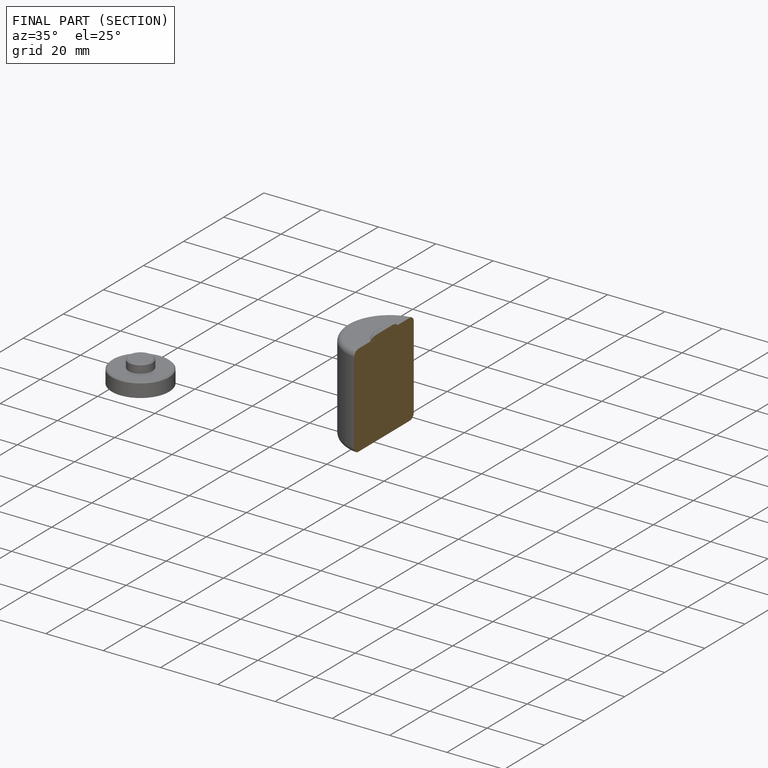
[diagram: finished part — half-section view (interior)]
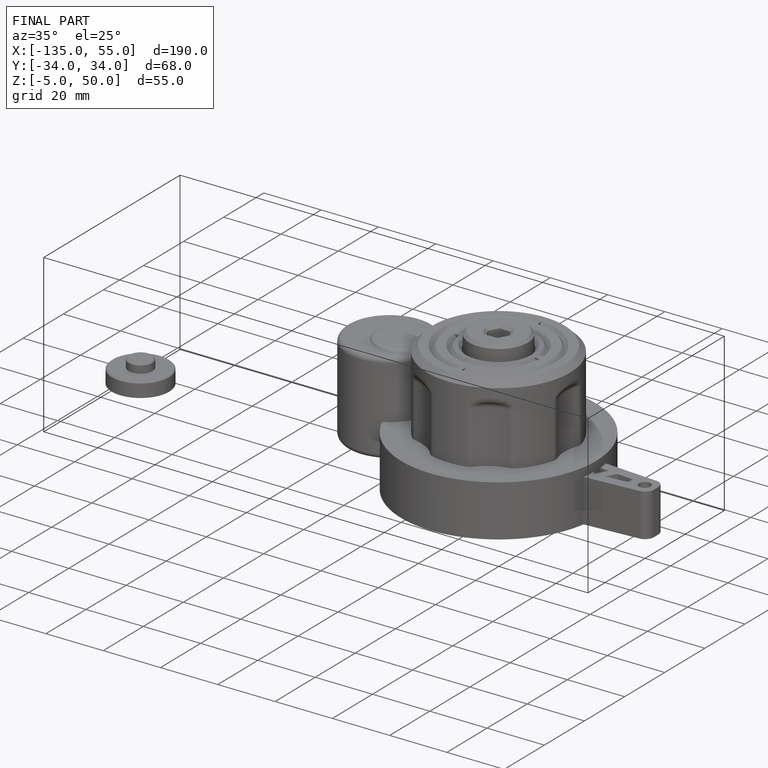
[diagram: finished part — iso view with bounding-box wireframe]
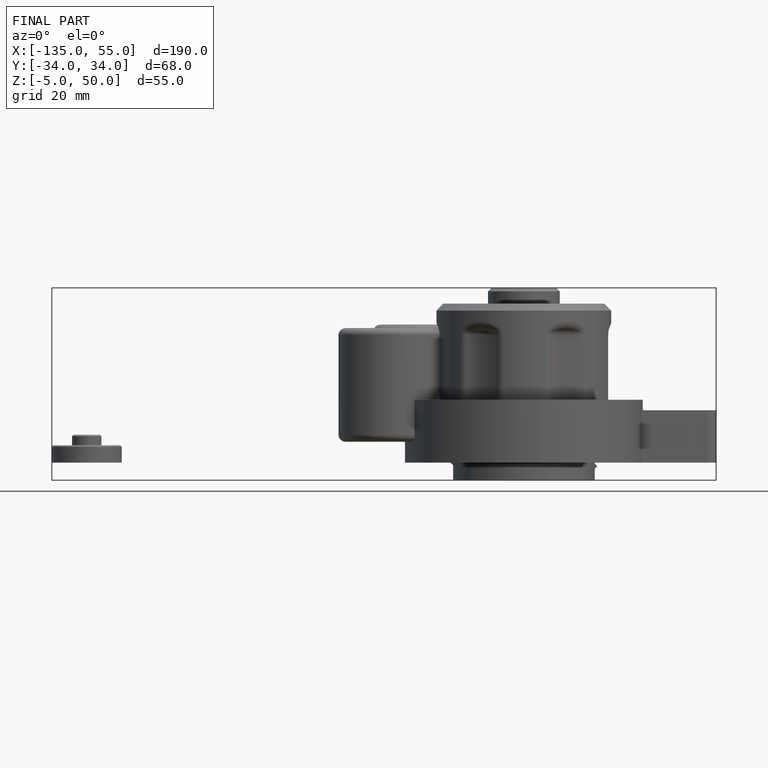
[diagram: finished part — front view with bounding-box wireframe]
